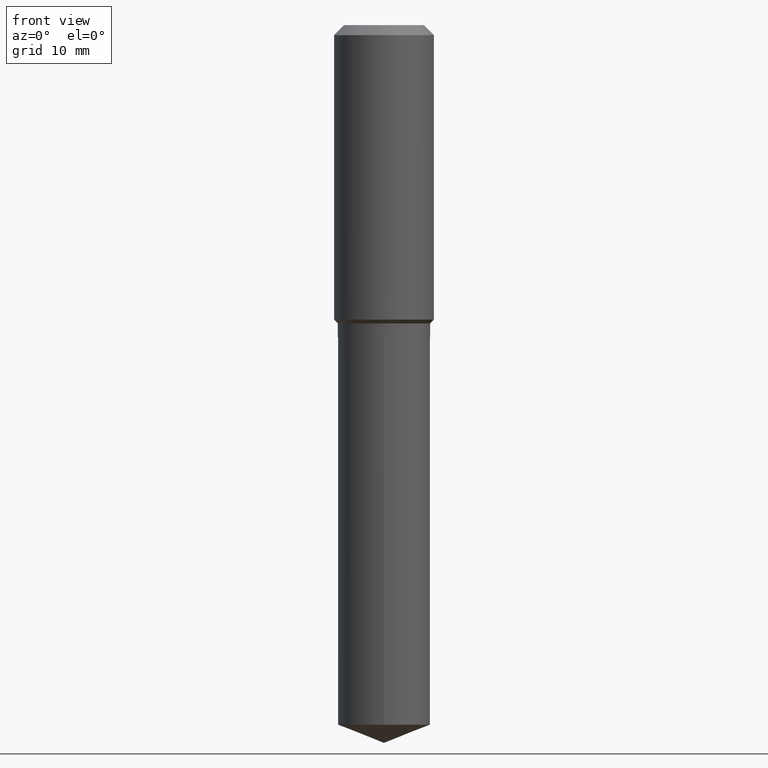
[diagram: clean part render]
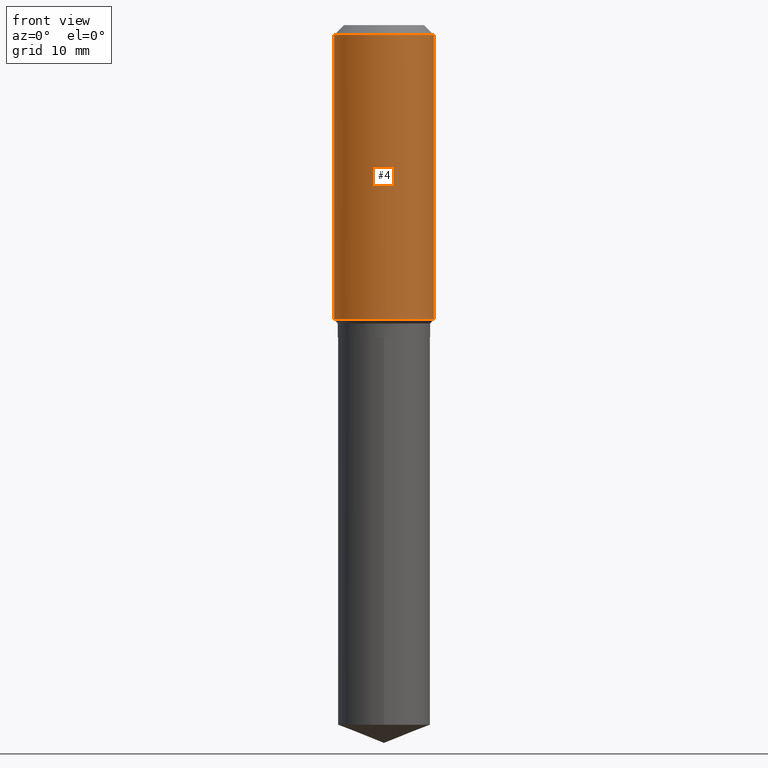
[diagram: same view with one face highlighted and labeled with its STEP entity id]
A machine part, front view. The second image highlights one B-rep face of the part: STEP entity #4.
In plain terms, the highlighted cylindrical surface (partial cylindrical patch) has radius 7.9997 mm, axis along (-0, 0, 1).
Its self-contained STEP definition (entity closure, byte-faithful):
#4 = ADVANCED_FACE ( 'NONE', ( #210 ), #475, .T. ) ;
#13 = CIRCLE ( 'NONE', #486, 0.3149500000000002298 ) ;
#22 = CARTESIAN_POINT ( 'NONE',  ( 1.540400801016026329E-30, -2.199284095337310135E-16, -0.06299000000000036514 ) ) ;
#44 = DIRECTION ( 'NONE',  ( -2.445468806185136877E-29, 3.491481338843145188E-15, 1.000000000000000000 ) ) ;
#47 = CARTESIAN_POINT ( 'NONE',  ( -0.3149500000000002298, -4.247572240624702209E-15, -1.857499999999999041 ) ) ;
#51 = CARTESIAN_POINT ( 'NONE',  ( -0.3149500000000001743, 2.237854346276436774E-15, -1.549218606675783237E-29 ) ) ;
#57 = DIRECTION ( 'NONE',  ( 1.000000000000000000, -6.982962677686264344E-15, 0.000000000000000000 ) ) ;
#60 = VECTOR ( 'NONE', #192, 39.37007874015748143 ) ;
#68 = VECTOR ( 'NONE', #44, 39.37007874015748143 ) ;
#126 = LINE ( 'NONE', #163, #60 ) ;
#139 = CARTESIAN_POINT ( 'NONE',  ( 0.000000000000000000, 0.000000000000000000, 0.000000000000000000 ) ) ;
#142 = DIRECTION ( 'NONE',  ( -2.445468806185136597E-29, 3.491481338843145583E-15, 1.000000000000000000 ) ) ;
#160 = CARTESIAN_POINT ( 'NONE',  ( -0.3149500000000000077, -1.114823151940998237E-15, -0.06299000000000036514 ) ) ;
#162 = CIRCLE ( 'NONE', #410, 0.3149500000000000077 ) ;
#163 = CARTESIAN_POINT ( 'NONE',  ( 0.3149500000000001743, -2.199284095337290660E-15, 1.535751875536930690E-29 ) ) ;
#173 = EDGE_LOOP ( 'NONE', ( #225, #403, #338, #352 ) ) ;
#192 = DIRECTION ( 'NONE',  ( -2.445468806185136877E-29, 3.491481338843145188E-15, 1.000000000000000000 ) ) ;
#199 = LINE ( 'NONE', #51, #68 ) ;
#210 = FACE_OUTER_BOUND ( 'NONE', #173, .T. ) ;
#225 = ORIENTED_EDGE ( 'NONE', *, *, #249, .F. ) ;
#226 = VERTEX_POINT ( 'NONE', #313 ) ;
#249 = EDGE_CURVE ( 'NONE', #281, #284, #199, .T. ) ;
#281 = VERTEX_POINT ( 'NONE', #47 ) ;
#284 = VERTEX_POINT ( 'NONE', #160 ) ;
#298 = CARTESIAN_POINT ( 'NONE',  ( 4.542458307488888673E-29, -6.485426586901138982E-15, -1.857499999999999041 ) ) ;
#300 = EDGE_CURVE ( 'NONE', #226, #339, #126, .T. ) ;
#313 = CARTESIAN_POINT ( 'NONE',  ( 0.3149500000000002298, -8.684710682238430431E-15, -1.857499999999999041 ) ) ;
#323 = CARTESIAN_POINT ( 'NONE',  ( 0.3149500000000000077, -2.419212504871020909E-15, -0.06299000000000036514 ) ) ;
#338 = ORIENTED_EDGE ( 'NONE', *, *, #300, .T. ) ;
#339 = VERTEX_POINT ( 'NONE', #323 ) ;
#352 = ORIENTED_EDGE ( 'NONE', *, *, #485, .F. ) ;
#403 = ORIENTED_EDGE ( 'NONE', *, *, #428, .T. ) ;
#404 = DIRECTION ( 'NONE',  ( 1.000000000000000000, -6.982962677686265922E-15, 4.876176775795935232E-29 ) ) ;
#410 = AXIS2_PLACEMENT_3D ( 'NONE', #22, #466, #423 ) ;
#423 = DIRECTION ( 'NONE',  ( 1.000000000000000000, -6.982962677686266711E-15, 0.000000000000000000 ) ) ;
#428 = EDGE_CURVE ( 'NONE', #281, #226, #13, .T. ) ;
#441 = DIRECTION ( 'NONE',  ( -2.445468806185136597E-29, 3.491481338843145583E-15, 1.000000000000000000 ) ) ;
#466 = DIRECTION ( 'NONE',  ( -2.445468806185136597E-29, 3.491481338843145583E-15, 1.000000000000000000 ) ) ;
#475 = CYLINDRICAL_SURFACE ( 'NONE', #480, 0.3149500000000001743 ) ;
#480 = AXIS2_PLACEMENT_3D ( 'NONE', #139, #142, #404 ) ;
#485 = EDGE_CURVE ( 'NONE', #284, #339, #162, .T. ) ;
#486 = AXIS2_PLACEMENT_3D ( 'NONE', #298, #441, #57 ) ;